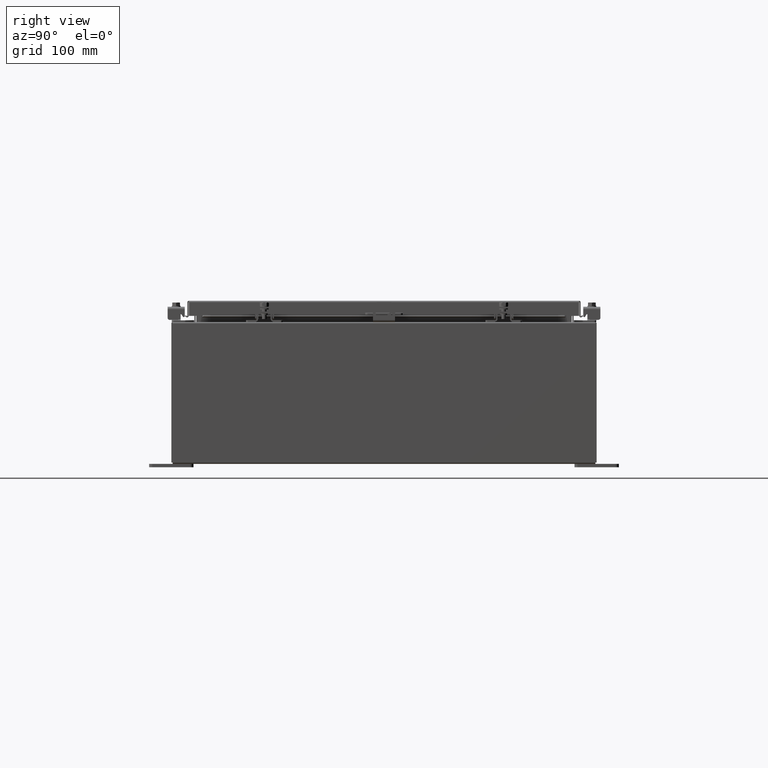
[diagram: clean part render]
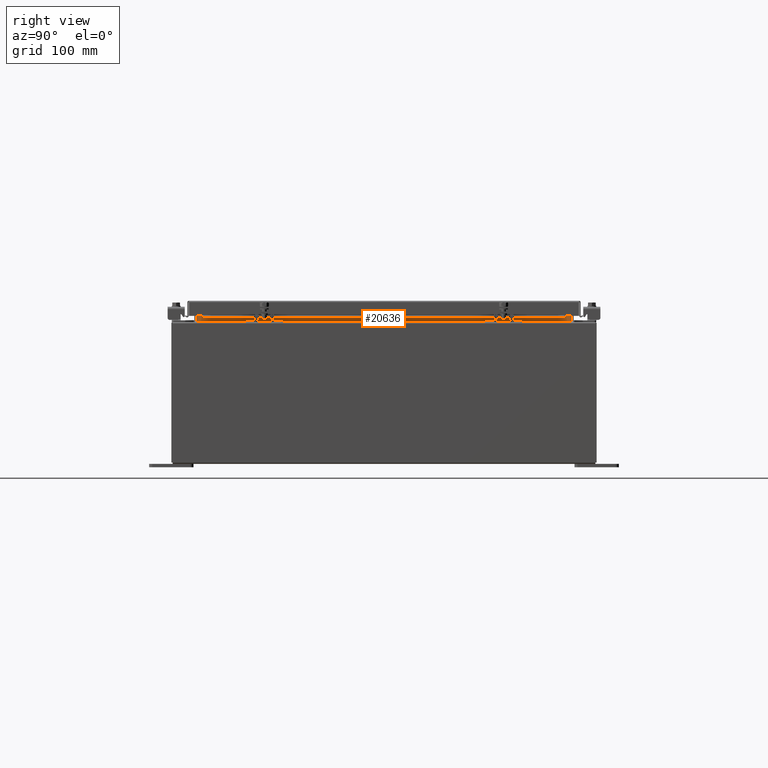
[diagram: same view with one face highlighted and labeled with its STEP entity id]
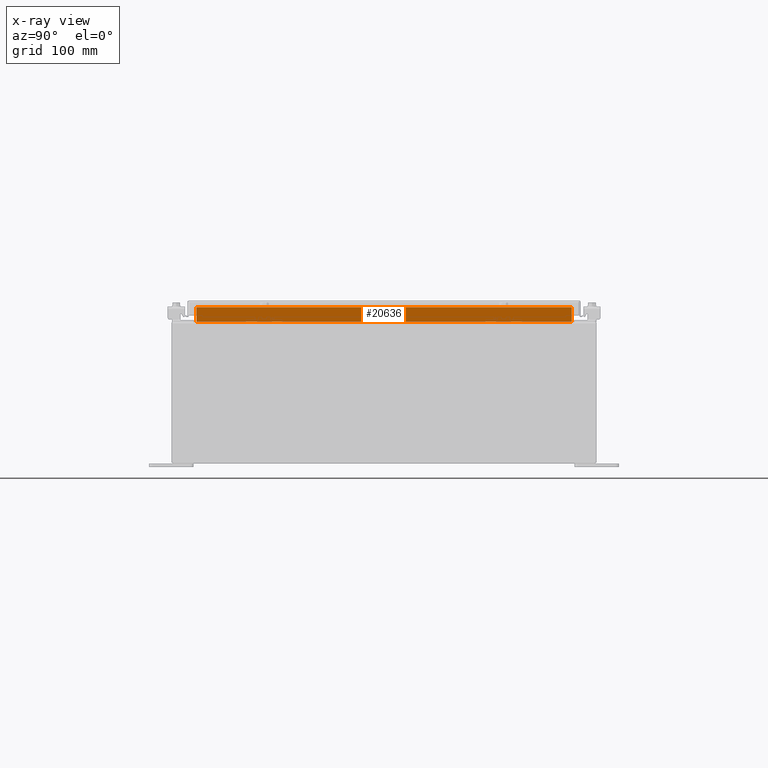
[diagram: x-ray of the same camera — body ghosted, the highlighted face saturated]
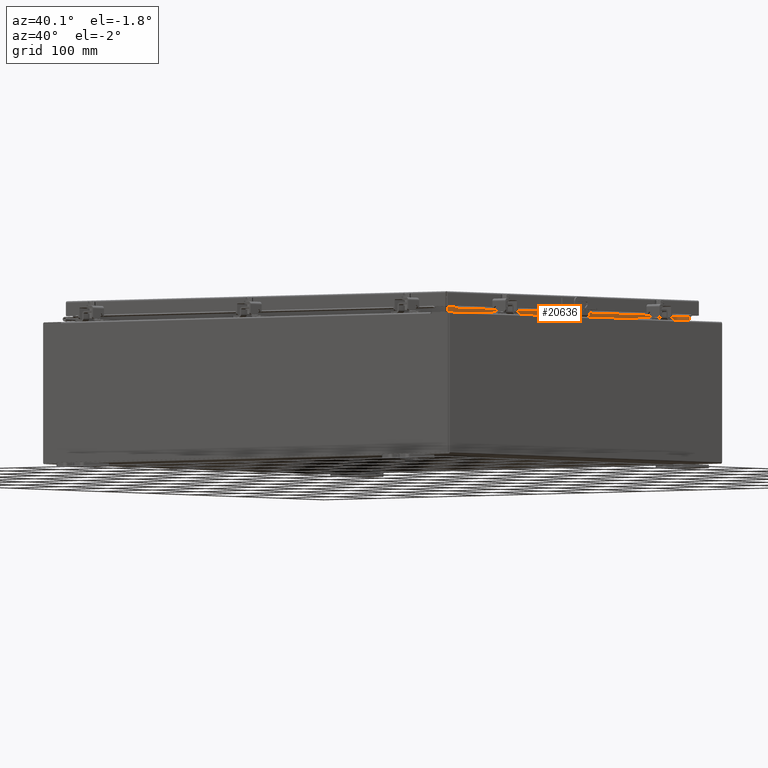
[diagram: same view with one face highlighted and labeled with its STEP entity id]
A machine part, right view. The second image highlights one B-rep face of the part: STEP entity #20636.
The next image is the same camera in x-ray: the body ghosted, the highlighted face saturated — about 0% of this face is hidden behind the body in this view.
A second angle (auxiliary view) of the same face is appended — the face is thin or edge-on in the first view.
In plain terms, the highlighted planar face has unit normal (1, -0, -0).
Its self-contained STEP definition (entity closure, byte-faithful):
#408 = LINE ( 'NONE', #16186, #26326 ) ;
#528 = LINE ( 'NONE', #17253, #7198 ) ;
#1609 = DIRECTION ( 'NONE',  ( 1.000000000000000000, -1.218149977913431200E-031, -2.361913319930196000E-015 ) ) ;
#2275 = DIRECTION ( 'NONE',  ( 2.361913319930198800E-015, -0.0000000000000000000, 1.000000000000000000 ) ) ;
#4282 = EDGE_CURVE ( 'NONE', #19367, #7327, #19562, .T. ) ;
#6645 = CARTESIAN_POINT ( 'NONE',  ( 13.69970000000001100, -1.668828925242064600E-030, -3.235750390904772800E-014 ) ) ;
#7198 = VECTOR ( 'NONE', #2275, 39.37007874015748100 ) ;
#7327 = VERTEX_POINT ( 'NONE', #18473 ) ;
#7968 = ORIENTED_EDGE ( 'NONE', *, *, #17997, .F. ) ;
#10112 = VERTEX_POINT ( 'NONE', #29700 ) ;
#10403 = DIRECTION ( 'NONE',  ( 0.0000000000000000000, 1.000000000000000000, 0.0000000000000000000 ) ) ;
#13083 = ORIENTED_EDGE ( 'NONE', *, *, #13662, .F. ) ;
#13662 = EDGE_CURVE ( 'NONE', #25704, #19367, #408, .T. ) ;
#13714 = EDGE_LOOP ( 'NONE', ( #13083, #19986, #7968, #19955 ) ) ;
#13722 = DIRECTION ( 'NONE',  ( -2.361913319930196000E-015, -0.0000000000000000000, -1.000000000000000000 ) ) ;
#15808 = DIRECTION ( 'NONE',  ( 0.0000000000000000000, -1.000000000000000000, 3.094482683088723800E-016 ) ) ;
#16009 = CARTESIAN_POINT ( 'NONE',  ( 13.69970000000003000, 10.59374999999999600, 7.938300000000008800 ) ) ;
#16186 = CARTESIAN_POINT ( 'NONE',  ( 13.69970000000003000, 10.59374999999999600, 7.925300000000008900 ) ) ;
#17045 = CARTESIAN_POINT ( 'NONE',  ( 13.69970000000003400, 10.59374999999999600, 8.762900000000009000 ) ) ;
#17253 = CARTESIAN_POINT ( 'NONE',  ( 13.69970000000003200, -10.59375000000000200, 8.850600000000008900 ) ) ;
#17997 = EDGE_CURVE ( 'NONE', #7327, #10112, #528, .T. ) ;
#18167 = CARTESIAN_POINT ( 'NONE',  ( 13.69970000000003000, 10.59374999999999300, 7.938300000000011500 ) ) ;
#18328 = LINE ( 'NONE', #30529, #25044 ) ;
#18473 = CARTESIAN_POINT ( 'NONE',  ( 13.69970000000003000, -10.59375000000000200, 7.938300000000011500 ) ) ;
#19367 = VERTEX_POINT ( 'NONE', #18167 ) ;
#19562 = LINE ( 'NONE', #16009, #25483 ) ;
#19955 = ORIENTED_EDGE ( 'NONE', *, *, #4282, .F. ) ;
#19986 = ORIENTED_EDGE ( 'NONE', *, *, #27899, .F. ) ;
#20636 = ADVANCED_FACE ( 'NONE', ( #22787 ), #26743, .T. ) ;
#22222 = AXIS2_PLACEMENT_3D ( 'NONE', #6645, #1609, #29292 ) ;
#22787 = FACE_OUTER_BOUND ( 'NONE', #13714, .T. ) ;
#25044 = VECTOR ( 'NONE', #10403, 39.37007874015748100 ) ;
#25483 = VECTOR ( 'NONE', #15808, 39.37007874015748100 ) ;
#25704 = VERTEX_POINT ( 'NONE', #17045 ) ;
#26326 = VECTOR ( 'NONE', #13722, 39.37007874015748100 ) ;
#26743 = PLANE ( 'NONE',  #22222 ) ;
#27899 = EDGE_CURVE ( 'NONE', #10112, #25704, #18328, .T. ) ;
#29292 = DIRECTION ( 'NONE',  ( -2.361913319930196000E-015, 0.0000000000000000000, -1.000000000000000000 ) ) ;
#29700 = CARTESIAN_POINT ( 'NONE',  ( 13.69970000000003200, -10.59375000000000200, 8.762900000000009000 ) ) ;
#30529 = CARTESIAN_POINT ( 'NONE',  ( 13.69970000000003400, -10.59375000000000000, 8.762900000000009000 ) ) ;